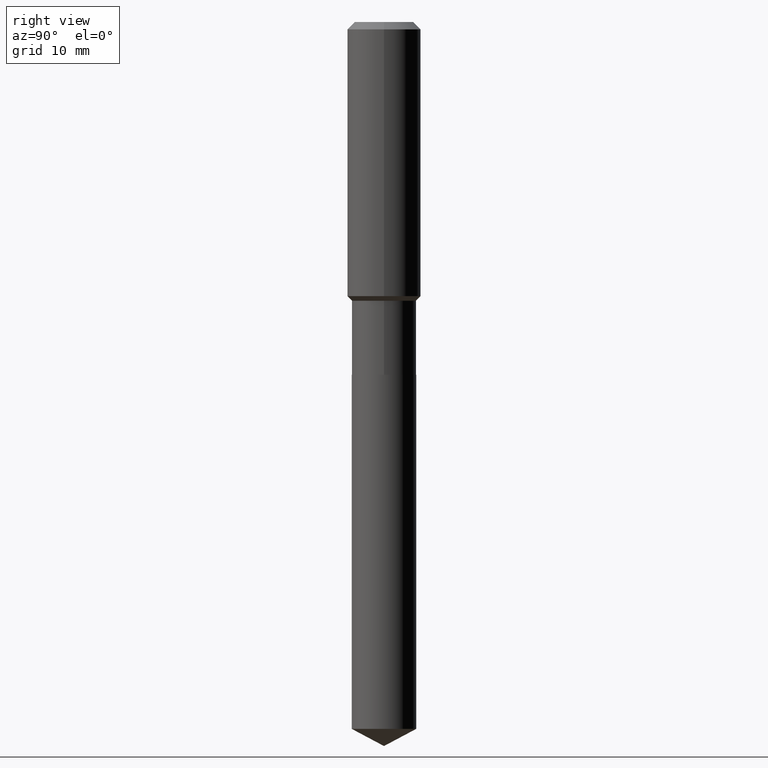
[diagram: clean part render]
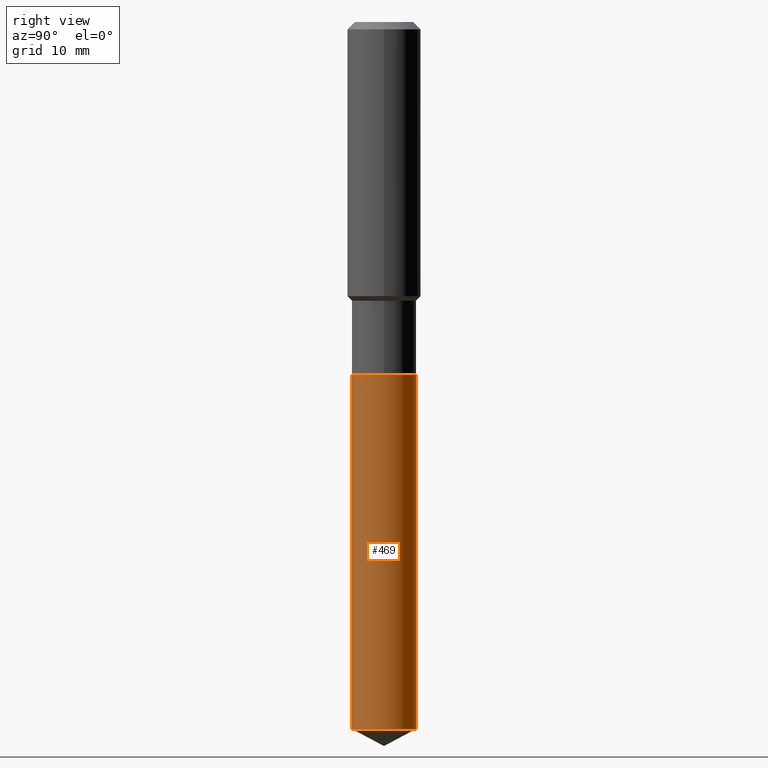
[diagram: same view with one face highlighted and labeled with its STEP entity id]
A machine part, right view. The second image highlights one B-rep face of the part: STEP entity #469.
In plain terms, the highlighted cylindrical surface (edge-blend (fillet) strip) has radius 5.2502 mm, axis along (-0, 0, 1).
Its self-contained STEP definition (entity closure, byte-faithful):
#3 = DIRECTION ( 'NONE',  ( -6.982962677686265133E-15, -1.000000000000000000, 2.643297526525653668E-15 ) ) ;
#4 = VERTEX_POINT ( 'NONE', #154 ) ;
#22 = CARTESIAN_POINT ( 'NONE',  ( 1.468691834816237291E-15, 0.2066999999999841187, -4.535795660475574032 ) ) ;
#23 = ORIENTED_EDGE ( 'NONE', *, *, #383, .F. ) ;
#26 = DIRECTION ( 'NONE',  ( -2.445496147551325401E-29, 3.491442184450589334E-15, 1.000000000000000000 ) ) ;
#33 = CIRCLE ( 'NONE', #284, 0.2067000000000000226 ) ;
#56 = DIRECTION ( 'NONE',  ( -2.445496147551325401E-29, 3.491442184450589334E-15, 1.000000000000000000 ) ) ;
#93 = LINE ( 'NONE', #369, #344 ) ;
#112 = AXIS2_PLACEMENT_3D ( 'NONE', #129, #155, #281 ) ;
#129 = CARTESIAN_POINT ( 'NONE',  ( 5.536052283441911489E-29, -7.904015454873111947E-15, -2.263799999999999812 ) ) ;
#154 = CARTESIAN_POINT ( 'NONE',  ( -1.443378385477640183E-15, -0.2067000000000157878, -4.535795660475572255 ) ) ;
#155 = DIRECTION ( 'NONE',  ( -2.445496147551325401E-29, 3.491442184450589334E-15, 1.000000000000000000 ) ) ;
#168 = EDGE_CURVE ( 'NONE', #4, #283, #33, .T. ) ;
#172 = CYLINDRICAL_SURFACE ( 'NONE', #193, 0.2067000000000000226 ) ;
#179 = LINE ( 'NONE', #304, #213 ) ;
#186 = EDGE_CURVE ( 'NONE', #283, #481, #179, .T. ) ;
#193 = AXIS2_PLACEMENT_3D ( 'NONE', #241, #26, #401 ) ;
#213 = VECTOR ( 'NONE', #56, 39.37007874015748143 ) ;
#225 = CARTESIAN_POINT ( 'NONE',  ( -1.443378385477695995E-15, -0.2067000000000079052, -2.263799999999998924 ) ) ;
#227 = CIRCLE ( 'NONE', #112, 0.2067000000000000226 ) ;
#233 = ORIENTED_EDGE ( 'NONE', *, *, #168, .T. ) ;
#241 = CARTESIAN_POINT ( 'NONE',  ( 5.536052283441911489E-29, -7.904015454873111947E-15, -2.263799999999999812 ) ) ;
#254 = ORIENTED_EDGE ( 'NONE', *, *, #327, .F. ) ;
#262 = CARTESIAN_POINT ( 'NONE',  ( 1.109220891838825570E-28, -1.583655694674620916E-14, -4.535795660475573143 ) ) ;
#272 = VERTEX_POINT ( 'NONE', #225 ) ;
#281 = DIRECTION ( 'NONE',  ( -6.982962677686265133E-15, -1.000000000000000000, 3.964946289788480107E-15 ) ) ;
#283 = VERTEX_POINT ( 'NONE', #22 ) ;
#284 = AXIS2_PLACEMENT_3D ( 'NONE', #262, #386, #3 ) ;
#287 = FACE_OUTER_BOUND ( 'NONE', #309, .T. ) ;
#304 = CARTESIAN_POINT ( 'NONE',  ( 1.468691834816182268E-15, 0.2066999999999921123, -2.263800000000000701 ) ) ;
#309 = EDGE_LOOP ( 'NONE', ( #233, #444, #23, #254 ) ) ;
#327 = EDGE_CURVE ( 'NONE', #4, #272, #93, .T. ) ;
#344 = VECTOR ( 'NONE', #378, 39.37007874015748143 ) ;
#346 = CARTESIAN_POINT ( 'NONE',  ( 1.468691834816238474E-15, 0.2066999999999921123, -2.263800000000000701 ) ) ;
#369 = CARTESIAN_POINT ( 'NONE',  ( -1.443378385477695995E-15, -0.2067000000000079052, -2.263799999999998924 ) ) ;
#378 = DIRECTION ( 'NONE',  ( -2.445496147551325401E-29, 3.491442184450589334E-15, 1.000000000000000000 ) ) ;
#383 = EDGE_CURVE ( 'NONE', #272, #481, #227, .T. ) ;
#386 = DIRECTION ( 'NONE',  ( -2.445496147551325401E-29, 3.491442184450589334E-15, 1.000000000000000000 ) ) ;
#401 = DIRECTION ( 'NONE',  ( -6.982962677686265133E-15, -1.000000000000000000, 3.964946289788480107E-15 ) ) ;
#444 = ORIENTED_EDGE ( 'NONE', *, *, #186, .T. ) ;
#469 = ADVANCED_FACE ( 'NONE', ( #287 ), #172, .T. ) ;
#481 = VERTEX_POINT ( 'NONE', #346 ) ;